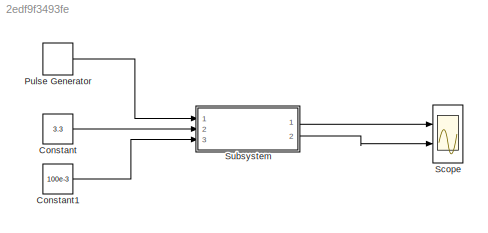
MODEL slx_2edf9f3493fe
KIND model
CONFIG AbsTol = auto
CONFIG EnableMultiTasking = off
CONFIG FixedStep = auto
CONFIG MaxStep = auto
CONFIG MinStep = auto
CONFIG RelTol = 1e-3
CONFIG SampleTimeConstraint = Unconstrained
CONFIG Solver = VariableStepAuto
CONFIG SolverName = VariableStepAuto
CONFIG StartTime = 0.0
CONFIG StopTime = 1
BLOCK [Constant] Constant
  Value = 3.3
BLOCK [Constant] Constant1
  Value = 100e-3
BLOCK [DiscretePulseGenerator] Pulse Generator
  Period = 1*10^-6
  Ports = [0, 1]
  PulseType = Time based
  PulseWidth = 36.45
BLOCK [Scope] Scope
  NumInputPorts = 2
  Ports = [2]
  ScopeSpecificationString = Simulink.scopes.TimeScopeBlockCfg('CurrentConfiguration', extmgr.ConfigurationSet(extmgr.Configuration('Core','General UI',true),extmgr.Configuration('Core','Source UI',true),extmgr.Configuration('Sources','WiredSimulink',true),extmgr.Configuration('Visuals','Time Domain',true,'SerializedDisplays',{struct('MinYLimReal','1.96759','MaxYLimReal','2.31029','YLabelReal','','MinYLimMag','1.96759','MaxYL...<+2048ch>
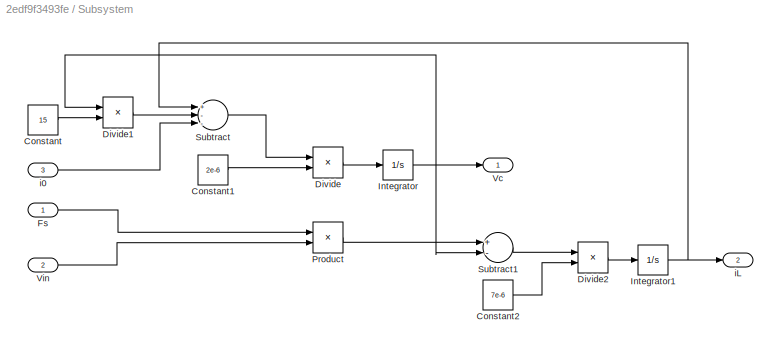
BLOCK [SubSystem] Subsystem
  Ports = [3, 2]
  RequestExecContextInheritance = off
  Variant = off
BLOCK [Constant] Subsystem/Constant
  Value = 15
BLOCK [Constant] Subsystem/Constant1
  Value = 2e-6
BLOCK [Constant] Subsystem/Constant2
  Value = 7e-6
BLOCK [Product] Subsystem/Divide
  InputSameDT = off
  Inputs = */
  OutDataTypeStr = Inherit: Inherit via internal rule
  Ports = [2, 1]
  RndMeth = Floor
  SaturateOnIntegerOverflow = off
BLOCK [Product] Subsystem/Divide1
  InputSameDT = off
  Inputs = */
  OutDataTypeStr = Inherit: Inherit via internal rule
  Ports = [2, 1]
  RndMeth = Floor
  SaturateOnIntegerOverflow = off
BLOCK [Product] Subsystem/Divide2
  InputSameDT = off
  Inputs = */
  OutDataTypeStr = Inherit: Inherit via internal rule
  Ports = [2, 1]
  RndMeth = Floor
  SaturateOnIntegerOverflow = off
BLOCK [Inport] Subsystem/Fs
  IconDisplay = Port number
BLOCK [Integrator] Subsystem/Integrator
  Ports = [1, 1]
BLOCK [Integrator] Subsystem/Integrator1
  Ports = [1, 1]
BLOCK [Product] Subsystem/Product
  InputSameDT = off
  OutDataTypeStr = Inherit: Inherit via internal rule
  Ports = [2, 1]
  RndMeth = Floor
  SaturateOnIntegerOverflow = off
BLOCK [Sum] Subsystem/Subtract
  InputSameDT = off
  Inputs = +--
  OutDataTypeStr = Inherit: Inherit via internal rule
  Ports = [3, 1]
  SaturateOnIntegerOverflow = off
BLOCK [Sum] Subsystem/Subtract1
  InputSameDT = off
  Inputs = +-
  OutDataTypeStr = Inherit: Inherit via internal rule
  Ports = [2, 1]
  SaturateOnIntegerOverflow = off
BLOCK [Outport] Subsystem/Vc
  IconDisplay = Port number
BLOCK [Inport] Subsystem/Vin
  IconDisplay = Port number
  Port = 2
BLOCK [Inport] Subsystem/i0
  IconDisplay = Port number
  Port = 3
BLOCK [Outport] Subsystem/iL
  IconDisplay = Port number
  Port = 2
LINE Constant1:1 -> Subsystem:3
LINE Constant:1 -> Subsystem:2
LINE Pulse Generator:1 -> Subsystem:1
LINE Subsystem/Constant1:1 -> Subsystem/Divide:2
LINE Subsystem/Constant2:1 -> Subsystem/Divide2:2
LINE Subsystem/Constant:1 -> Subsystem/Divide1:2
LINE Subsystem/Divide1:1 -> Subsystem/Subtract:2
LINE Subsystem/Divide2:1 -> Subsystem/Integrator1:1
LINE Subsystem/Divide:1 -> Subsystem/Integrator:1
LINE Subsystem/Fs:1 -> Subsystem/Product:1
NET Subsystem/Integrator1:1 -> Subsystem/Subtract:1, Subsystem/iL:1
NET Subsystem/Integrator:1 -> Subsystem/Divide1:1, Subsystem/Subtract1:2, Subsystem/Vc:1
LINE Subsystem/Product:1 -> Subsystem/Subtract1:1
LINE Subsystem/Subtract1:1 -> Subsystem/Divide2:1
LINE Subsystem/Subtract:1 -> Subsystem/Divide:1
LINE Subsystem/Vin:1 -> Subsystem/Product:2
LINE Subsystem/i0:1 -> Subsystem/Subtract:3
LINE Subsystem:1 -> Scope:1
LINE Subsystem:2 -> Scope:2
note: NET lines group one-source signal fan-out (src -> all destinations, sorted); 1:1 wires keep LINE
